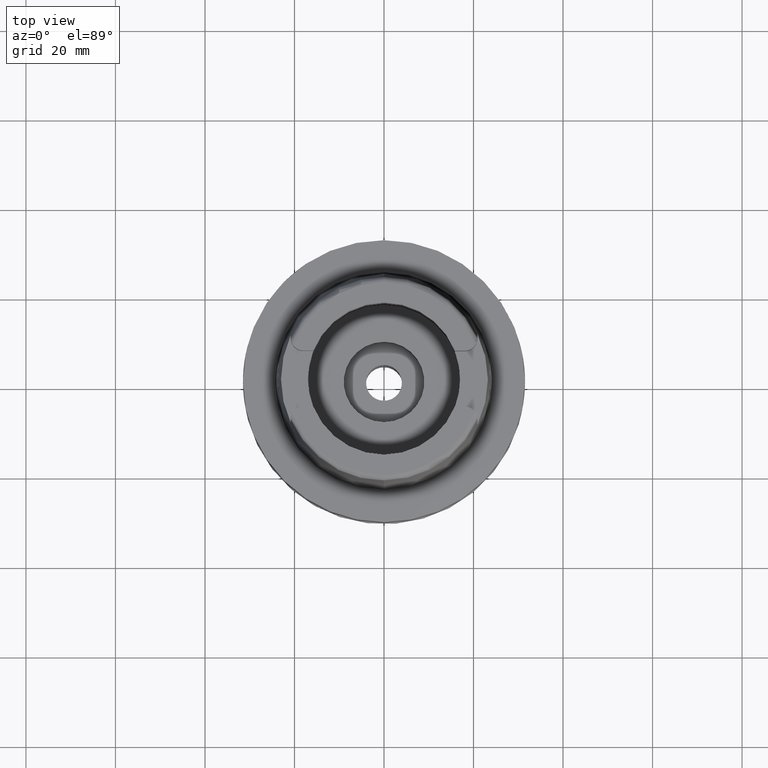
[diagram: clean part render]
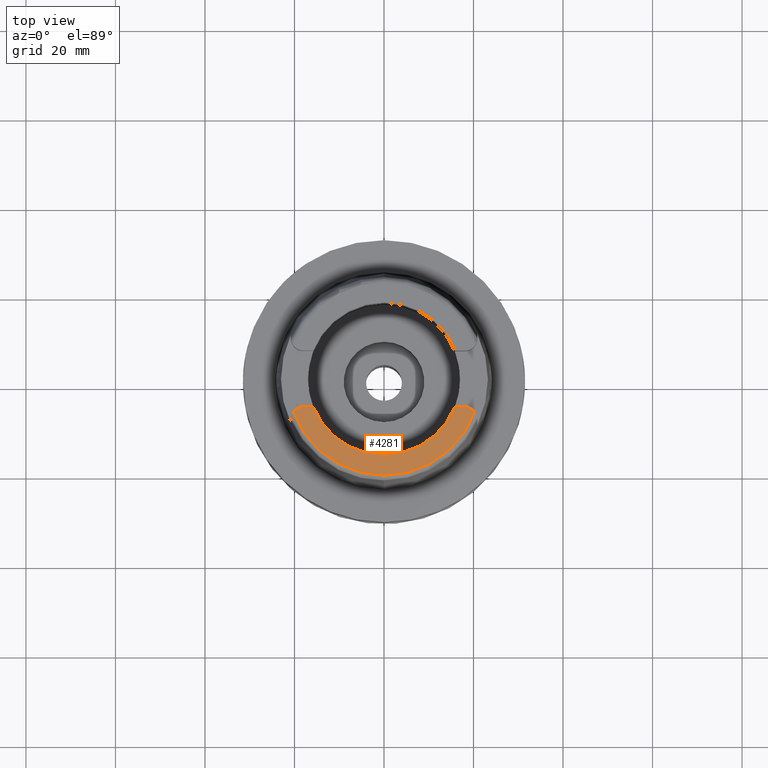
[diagram: same view with one face highlighted and labeled with its STEP entity id]
A machine part, top view. The second image highlights one B-rep face of the part: STEP entity #4281.
In plain terms, the highlighted planar face has unit normal (0, 0, 1).
Its self-contained STEP definition (entity closure, byte-faithful):
#23 = CIRCLE ( 'NONE', #4464, 17.00000000000000000 ) ;
#32 = ORIENTED_EDGE ( 'NONE', *, *, #286, .T. ) ;
#80 = EDGE_CURVE ( 'NONE', #4547, #3302, #3896, .T. ) ;
#146 = CIRCLE ( 'NONE', #1025, 2.800000000000000266 ) ;
#173 = EDGE_CURVE ( 'NONE', #4547, #1216, #23, .T. ) ;
#201 = DIRECTION ( 'NONE',  ( -0.9294994374136111848, -0.3688235294118045182, 0.0000000000000000000 ) ) ;
#286 = EDGE_CURVE ( 'NONE', #2846, #1398, #695, .T. ) ;
#425 = AXIS2_PLACEMENT_3D ( 'NONE', #4395, #578, #2277 ) ;
#481 = DIRECTION ( 'NONE',  ( 1.000000000000000000, 0.0000000000000000000, 0.0000000000000000000 ) ) ;
#537 = DIRECTION ( 'NONE',  ( 0.0000000000000000000, 0.0000000000000000000, 1.000000000000000000 ) ) ;
#578 = DIRECTION ( 'NONE',  ( 0.0000000000000000000, 0.0000000000000000000, -1.000000000000000000 ) ) ;
#673 = ORIENTED_EDGE ( 'NONE', *, *, #807, .F. ) ;
#695 = LINE ( 'NONE', #4545, #2151 ) ;
#770 = AXIS2_PLACEMENT_3D ( 'NONE', #2920, #537, #481 ) ;
#807 = EDGE_CURVE ( 'NONE', #2846, #1961, #146, .T. ) ;
#950 = CARTESIAN_POINT ( 'NONE',  ( 15.80149043602999903, -6.270000000000000462, 32.00000000000000000 ) ) ;
#965 = CARTESIAN_POINT ( 'NONE',  ( 0.0000000000000000000, 0.0000000000000000000, 32.00000000000000000 ) ) ;
#1010 = CARTESIAN_POINT ( 'NONE',  ( 0.0000000000000000000, -17.00000000000000000, 32.00000000000000000 ) ) ;
#1025 = AXIS2_PLACEMENT_3D ( 'NONE', #3647, #4538, #4831 ) ;
#1060 = DIRECTION ( 'NONE',  ( 0.0000000000000000000, 0.0000000000000000000, 1.000000000000000000 ) ) ;
#1216 = VERTEX_POINT ( 'NONE', #1010 ) ;
#1359 = CARTESIAN_POINT ( 'NONE',  ( 20.28174256341000259, -7.352969181062000814, 32.00000000000000000 ) ) ;
#1398 = VERTEX_POINT ( 'NONE', #950 ) ;
#1493 = CIRCLE ( 'NONE', #2915, 21.57348458609000375 ) ;
#1815 = PLANE ( 'NONE',  #770 ) ;
#1961 = VERTEX_POINT ( 'NONE', #1359 ) ;
#2088 = ORIENTED_EDGE ( 'NONE', *, *, #5166, .F. ) ;
#2151 = VECTOR ( 'NONE', #3653, 1000.000000000000000 ) ;
#2277 = DIRECTION ( 'NONE',  ( -0.7912216523763718756, 0.6115294733786784676, 0.0000000000000000000 ) ) ;
#2293 = ORIENTED_EDGE ( 'NONE', *, *, #4973, .F. ) ;
#2545 = CARTESIAN_POINT ( 'NONE',  ( -17.98999999999999844, -6.270000000000000462, 32.00000000000000000 ) ) ;
#2550 = ORIENTED_EDGE ( 'NONE', *, *, #80, .T. ) ;
#2830 = CARTESIAN_POINT ( 'NONE',  ( 0.0000000000000000000, 0.0000000000000000000, 32.00000000000000000 ) ) ;
#2846 = VERTEX_POINT ( 'NONE', #2885 ) ;
#2885 = CARTESIAN_POINT ( 'NONE',  ( 18.07000000000000028, -6.270000000000000462, 32.00000000000000000 ) ) ;
#2915 = AXIS2_PLACEMENT_3D ( 'NONE', #965, #4360, #3972 ) ;
#2920 = CARTESIAN_POINT ( 'NONE',  ( 0.0000000000000000000, 0.0000000000000000000, 32.00000000000000000 ) ) ;
#3276 = DIRECTION ( 'NONE',  ( 0.0000000000000000000, -1.000000000000000000, 0.0000000000000000000 ) ) ;
#3302 = VERTEX_POINT ( 'NONE', #2545 ) ;
#3478 = VECTOR ( 'NONE', #5190, 1000.000000000000000 ) ;
#3480 = CARTESIAN_POINT ( 'NONE',  ( -15.80149043602999903, -6.270000000000000462, 32.00000000000000000 ) ) ;
#3647 = CARTESIAN_POINT ( 'NONE',  ( 18.07000000000000028, -9.070000000000000284, 32.00000000000000000 ) ) ;
#3653 = DIRECTION ( 'NONE',  ( -1.000000000000000000, -8.496094534321999950E-14, 0.0000000000000000000 ) ) ;
#3781 = VERTEX_POINT ( 'NONE', #4881 ) ;
#3896 = LINE ( 'NONE', #3480, #3478 ) ;
#3972 = DIRECTION ( 'NONE',  ( 0.9401236264118068009, -0.3408336354621024911, 0.0000000000000000000 ) ) ;
#4098 = CARTESIAN_POINT ( 'NONE',  ( 0.0000000000000000000, 0.0000000000000000000, 32.00000000000000000 ) ) ;
#4135 = EDGE_LOOP ( 'NONE', ( #2293, #673, #32, #2088, #4424, #2550, #4927 ) ) ;
#4281 = ADVANCED_FACE ( 'NONE', ( #5176 ), #1815, .T. ) ;
#4333 = CIRCLE ( 'NONE', #4689, 17.00000000000000000 ) ;
#4360 = DIRECTION ( 'NONE',  ( 0.0000000000000000000, 0.0000000000000000000, -1.000000000000000000 ) ) ;
#4395 = CARTESIAN_POINT ( 'NONE',  ( -17.98999999999999844, -9.150000000000000355, 32.00000000000000000 ) ) ;
#4422 = CIRCLE ( 'NONE', #425, 2.880000000000003446 ) ;
#4424 = ORIENTED_EDGE ( 'NONE', *, *, #173, .F. ) ;
#4464 = AXIS2_PLACEMENT_3D ( 'NONE', #4098, #1060, #201 ) ;
#4538 = DIRECTION ( 'NONE',  ( 0.0000000000000000000, 0.0000000000000000000, -1.000000000000000000 ) ) ;
#4545 = CARTESIAN_POINT ( 'NONE',  ( 18.07000000000000028, -6.270000000000000462, 32.00000000000000000 ) ) ;
#4547 = VERTEX_POINT ( 'NONE', #5095 ) ;
#4582 = DIRECTION ( 'NONE',  ( 0.0000000000000000000, 0.0000000000000000000, 1.000000000000000000 ) ) ;
#4689 = AXIS2_PLACEMENT_3D ( 'NONE', #2830, #4582, #3276 ) ;
#4786 = EDGE_CURVE ( 'NONE', #3781, #3302, #4422, .T. ) ;
#4831 = DIRECTION ( 'NONE',  ( 0.0000000000000000000, 1.000000000000000000, 0.0000000000000000000 ) ) ;
#4881 = CARTESIAN_POINT ( 'NONE',  ( -20.26871835884000106, -7.388795116668999796, 32.00000000000000000 ) ) ;
#4927 = ORIENTED_EDGE ( 'NONE', *, *, #4786, .F. ) ;
#4973 = EDGE_CURVE ( 'NONE', #1961, #3781, #1493, .T. ) ;
#5095 = CARTESIAN_POINT ( 'NONE',  ( -15.80149043602999903, -6.270000000000000462, 32.00000000000000000 ) ) ;
#5166 = EDGE_CURVE ( 'NONE', #1216, #1398, #4333, .T. ) ;
#5176 = FACE_OUTER_BOUND ( 'NONE', #4135, .T. ) ;
#5190 = DIRECTION ( 'NONE',  ( -1.000000000000000000, 8.644330667353000255E-14, 0.0000000000000000000 ) ) ;